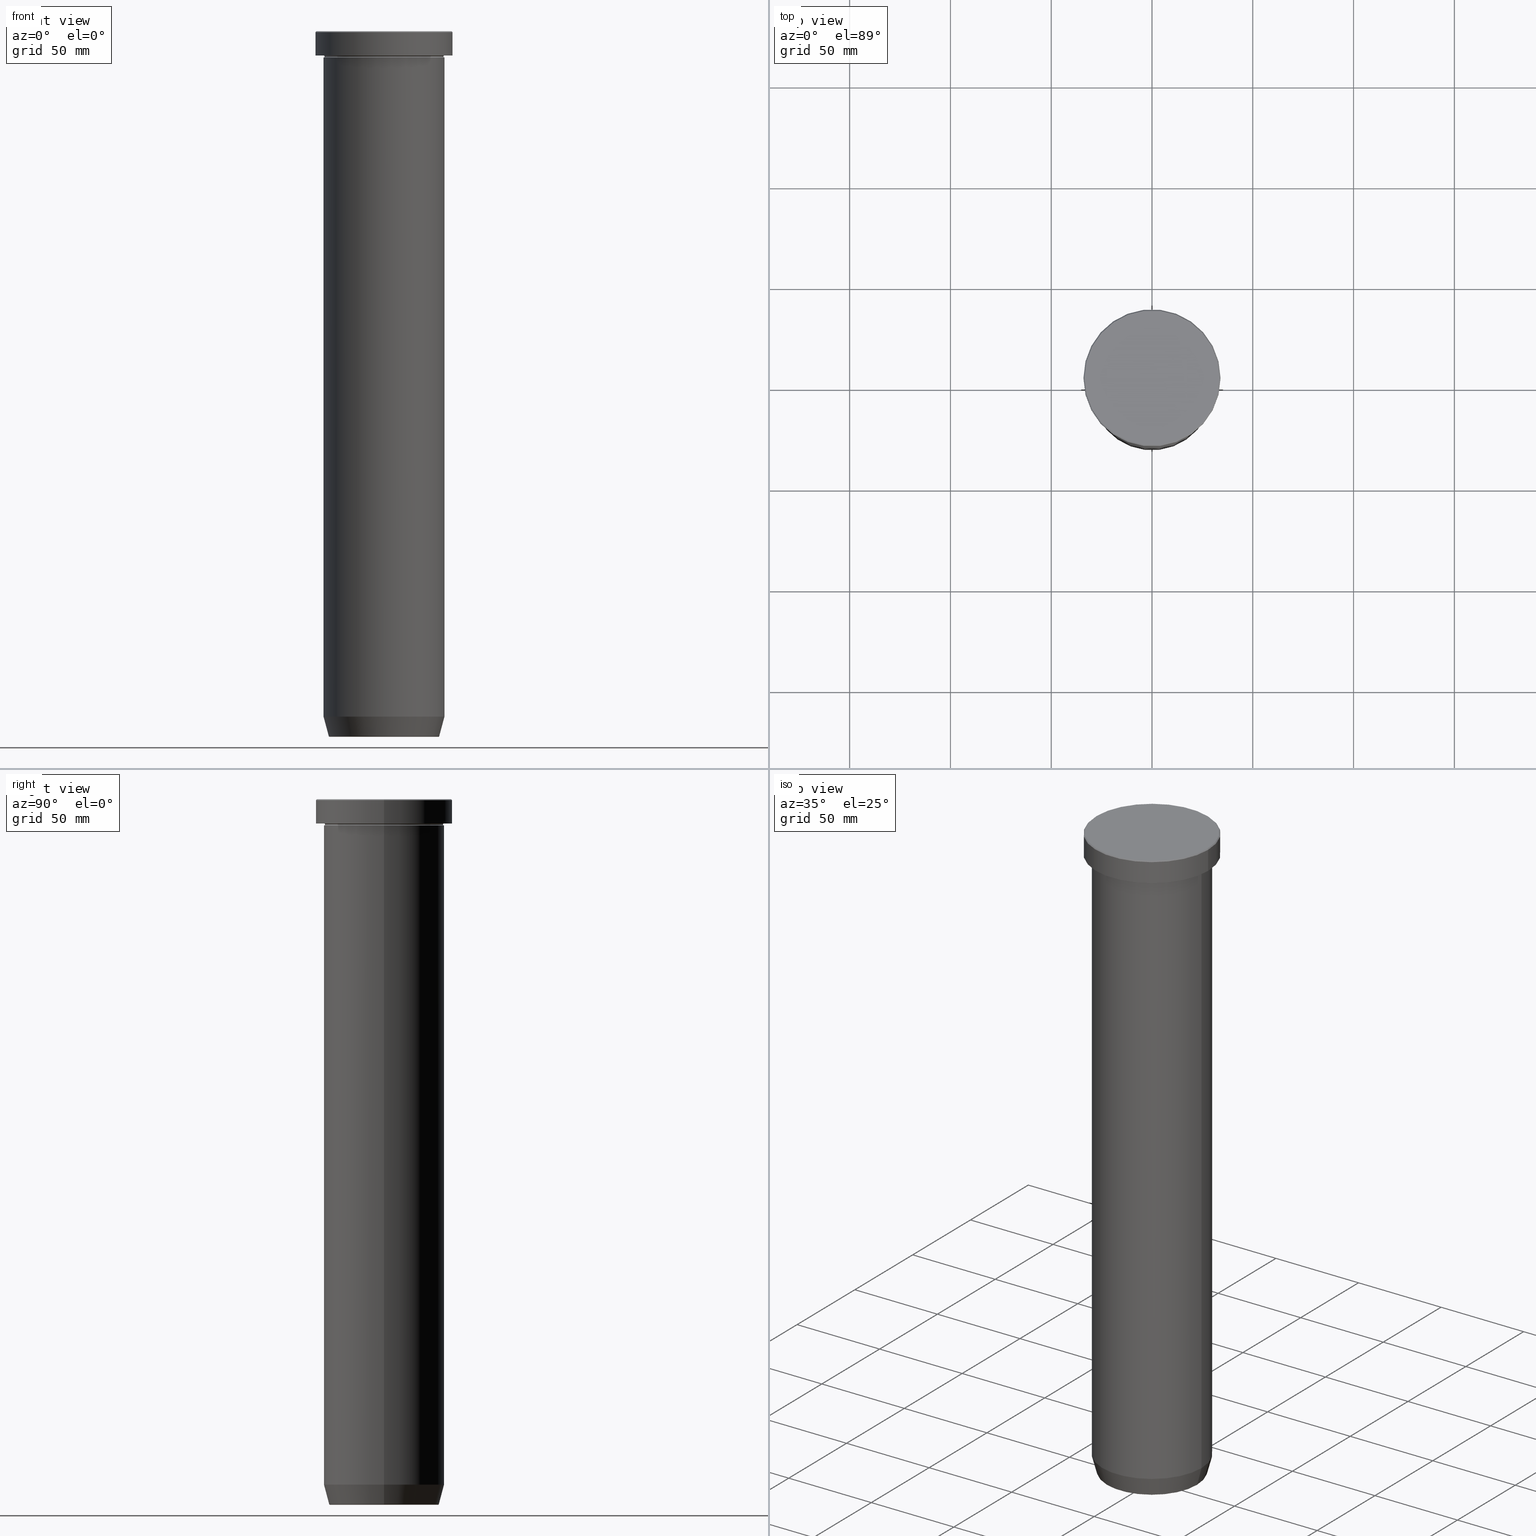
[diagram: canonical four-view strip — front | top / right | iso, engineering-drawing reading convention]
A machine part, canonical four-view strip (front | top / right | iso — engineering-drawing reading convention). The complete STEP part file that produces these views, byte-faithful:
ISO-10303-21;
HEADER;
FILE_DESCRIPTION (( 'STEP AP203' ),
    '1' );
FILE_NAME ('90fc.STEP',
    '2024-01-02T17:30:30',
    ( '' ),
    ( '' ),
    'SwSTEP 2.0',
    'SolidWorks 2019',
    '' );
FILE_SCHEMA (( 'CONFIG_CONTROL_DESIGN' ));
ENDSEC;

DATA;
#1 = PERSON ( 'NEUR�EN�', 'NEUR�EN�', 'NEUR�EN�', ('NEUR�EN�'), ('NEUR�EN�'), ('NEUR�EN�') ) ;
#2 = DIRECTION ( 'NONE',  ( 1.000000000000000000, 0.000000000000000000, 0.000000000000000000 ) ) ;
#3 = EDGE_CURVE ( 'NONE', #505, #324, #384, .T. ) ;
#4 = DIRECTION ( 'NONE',  ( 0.000000000000000000, 0.000000000000000000, -1.000000000000000000 ) ) ;
#5 = DIRECTION ( 'NONE',  ( 0.000000000000000000, 0.000000000000000000, -1.000000000000000000 ) ) ;
#6 = DIRECTION ( 'NONE',  ( 0.000000000000000000, 0.000000000000000000, -1.000000000000000000 ) ) ;
#7 = AXIS2_PLACEMENT_3D ( 'NONE', #491, #167, #525 ) ;
#8 = CIRCLE ( 'NONE', #291, 0.5000000000000004441 ) ;
#9 = VERTEX_POINT ( 'NONE', #41 ) ;
#10 = DIRECTION ( 'NONE',  ( 1.000000000000000000, 0.000000000000000000, 0.000000000000000000 ) ) ;
#11 = DIRECTION ( 'NONE',  ( -1.000000000000000000, 0.000000000000000000, -0.000000000000000000 ) ) ;
#12 = EDGE_CURVE ( 'NONE', #168, #570, #60, .T. ) ;
#13 = AXIS2_PLACEMENT_3D ( 'NONE', #253, #344, #349 ) ;
#14 = ORIENTED_EDGE ( 'NONE', *, *, #47, .F. ) ;
#15 = AXIS2_PLACEMENT_3D ( 'NONE', #457, #234, #412 ) ;
#16 = SECURITY_CLASSIFICATION ( '', '', #482 ) ;
#17 = ORIENTED_EDGE ( 'NONE', *, *, #214, .T. ) ;
#18 = ORIENTED_EDGE ( 'NONE', *, *, #409, .F. ) ;
#19 = EDGE_CURVE ( 'NONE', #161, #410, #588, .T. ) ;
#20 = ORIENTED_EDGE ( 'NONE', *, *, #543, .T. ) ;
#21 = DIRECTION ( 'NONE',  ( 1.000000000000000000, 0.000000000000000000, 0.000000000000000000 ) ) ;
#22 = CARTESIAN_POINT ( 'NONE',  ( 0.000000000000000000, 0.000000000000000000, -70.00000000000000000 ) ) ;
#23 = EDGE_LOOP ( 'NONE', ( #56, #518, #316, #425 ) ) ;
#24 = CARTESIAN_POINT ( 'NONE',  ( -30.00000000000000711, 3.673940397442059967E-15, -70.00000000000000000 ) ) ;
#25 = CIRCLE ( 'NONE', #107, 30.00000000000000000 ) ;
#26 = DIRECTION ( 'NONE',  ( -1.000000000000000000, 0.000000000000000000, -0.000000000000000000 ) ) ;
#27 = APPROVAL_PERSON_ORGANIZATION ( #548, #340, #454 ) ;
#28 = EDGE_LOOP ( 'NONE', ( #331, #113, #152, #17 ) ) ;
#29 = PERSON_AND_ORGANIZATION ( #1, #305 ) ;
#30 = EDGE_CURVE ( 'NONE', #473, #158, #78, .T. ) ;
#31 = CARTESIAN_POINT ( 'NONE',  ( 0.000000000000000000, 0.000000000000000000, -0.4999999999999935052 ) ) ;
#32 = DIRECTION ( 'NONE',  ( 0.000000000000000000, 0.000000000000000000, -1.000000000000000000 ) ) ;
#33 = FACE_OUTER_BOUND ( 'NONE', #574, .T. ) ;
#34 = DIRECTION ( 'NONE',  ( -1.000000000000000000, 0.000000000000000000, 0.000000000000000000 ) ) ;
#35 = CARTESIAN_POINT ( 'NONE',  ( -30.00000000000000000, 0.000000000000000000, -11.99999999999999645 ) ) ;
#36 = AXIS2_PLACEMENT_3D ( 'NONE', #585, #70, #442 ) ;
#37 = CIRCLE ( 'NONE', #199, 30.00000000000000000 ) ;
#38 = DIRECTION ( 'NONE',  ( 1.000000000000000000, 0.000000000000000000, 0.000000000000000000 ) ) ;
#39 = DIRECTION ( 'NONE',  ( -0.000000000000000000, -0.000000000000000000, 1.000000000000000000 ) ) ;
#40 = EDGE_CURVE ( 'NONE', #117, #72, #216, .T. ) ;
#41 = CARTESIAN_POINT ( 'NONE',  ( 34.00000000000000000, 0.000000000000000000, -0.4999999999999935052 ) ) ;
#42 = PERSON_AND_ORGANIZATION_ROLE ( 'creator' ) ;
#43 = LINE ( 'NONE', #315, #521 ) ;
#44 = CARTESIAN_POINT ( 'NONE',  ( 0.000000000000000000, 0.000000000000000000, 0.000000000000000000 ) ) ;
#45 = EDGE_LOOP ( 'NONE', ( #377, #188, #20, #461 ) ) ;
#46 = CIRCLE ( 'NONE', #108, 26.93684458169928320 ) ;
#47 = EDGE_CURVE ( 'NONE', #158, #9, #153, .T. ) ;
#48 = CARTESIAN_POINT ( 'NONE',  ( 30.00000000000000000, 0.000000000000000000, -12.49999999999999645 ) ) ;
#49 = DIRECTION ( 'NONE',  ( 0.000000000000000000, 0.000000000000000000, -1.000000000000000000 ) ) ;
#50 = DIRECTION ( 'NONE',  ( -1.000000000000000000, 0.000000000000000000, 0.000000000000000000 ) ) ;
#51 = DIRECTION ( 'NONE',  ( -0.000000000000000000, -0.000000000000000000, 1.000000000000000000 ) ) ;
#52 = ADVANCED_FACE ( 'NONE', ( #180 ), #546, .T. ) ;
#53 = PLANE ( 'NONE',  #100 ) ;
#54 = AXIS2_PLACEMENT_3D ( 'NONE', #391, #542, #38 ) ;
#55 = ORIENTED_EDGE ( 'NONE', *, *, #204, .F. ) ;
#56 = ORIENTED_EDGE ( 'NONE', *, *, #40, .F. ) ;
#57 = ORIENTED_EDGE ( 'NONE', *, *, #565, .T. ) ;
#58 = DIRECTION ( 'NONE',  ( 1.000000000000000000, 0.000000000000000000, 0.000000000000000000 ) ) ;
#59 = ORIENTED_EDGE ( 'NONE', *, *, #415, .F. ) ;
#60 = CIRCLE ( 'NONE', #274, 30.00000000000000355 ) ;
#61 = EDGE_CURVE ( 'NONE', #410, #161, #25, .T. ) ;
#62 = AXIS2_PLACEMENT_3D ( 'NONE', #44, #406, #273 ) ;
#63 = EDGE_LOOP ( 'NONE', ( #531, #420, #241, #428 ) ) ;
#64 = ORIENTED_EDGE ( 'NONE', *, *, #127, .F. ) ;
#65 = DIRECTION ( 'NONE',  ( 1.000000000000000000, 0.000000000000000000, 0.000000000000000000 ) ) ;
#66 = ADVANCED_FACE ( 'NONE', ( #556 ), #545, .T. ) ;
#67 = ORIENTED_EDGE ( 'NONE', *, *, #214, .F. ) ;
#68 = ORIENTED_EDGE ( 'NONE', *, *, #312, .F. ) ;
#69 = CIRCLE ( 'NONE', #15, 27.41980749484382684 ) ;
#70 = DIRECTION ( 'NONE',  ( -0.000000000000000000, -0.000000000000000000, 1.000000000000000000 ) ) ;
#71 = ORIENTED_EDGE ( 'NONE', *, *, #300, .T. ) ;
#72 = VERTEX_POINT ( 'NONE', #568 ) ;
#73 = DIRECTION ( 'NONE',  ( -0.000000000000000000, -0.000000000000000000, 1.000000000000000000 ) ) ;
#74 = FACE_OUTER_BOUND ( 'NONE', #244, .T. ) ;
#75 = DIRECTION ( 'NONE',  ( -1.000000000000000000, 0.000000000000000000, 0.000000000000000000 ) ) ;
#76 = DIRECTION ( 'NONE',  ( 0.000000000000000000, -1.000000000000000000, 0.000000000000000000 ) ) ;
#77 = CARTESIAN_POINT ( 'NONE',  ( 0.000000000000000000, 0.000000000000000000, 0.000000000000000000 ) ) ;
#78 = LINE ( 'NONE', #178, #119 ) ;
#79 = CARTESIAN_POINT ( 'NONE',  ( 0.000000000000000000, 0.000000000000000000, 0.000000000000000000 ) ) ;
#80 = ADVANCED_FACE ( 'NONE', ( #143 ), #53, .T. ) ;
#81 = DIRECTION ( 'NONE',  ( -0.000000000000000000, -0.000000000000000000, 1.000000000000000000 ) ) ;
#82 = AXIS2_PLACEMENT_3D ( 'NONE', #215, #395, #262 ) ;
#83 = TOROIDAL_SURFACE ( 'NONE', #54, 30.00000000000000000, 0.5000000000000000000 ) ;
#84 = APPLICATION_CONTEXT ( 'configuration controlled 3d designs of mechanical parts and assemblies' ) ;
#85 = DIRECTION ( 'NONE',  ( 1.000000000000000000, 0.000000000000000000, 0.000000000000000000 ) ) ;
#86 = CARTESIAN_POINT ( 'NONE',  ( 0.000000000000000000, 0.000000000000000000, -350.0000000000000568 ) ) ;
#87 = CARTESIAN_POINT ( 'NONE',  ( 0.000000000000000000, 0.000000000000000000, -70.00000000000000000 ) ) ;
#88 = CARTESIAN_POINT ( 'NONE',  ( 0.000000000000000000, 0.000000000000000000, -12.49999999999999645 ) ) ;
#89 = APPROVAL ( #230, 'NEUR�EN�' ) ;
#90 = DIRECTION ( 'NONE',  ( 1.000000000000000000, 0.000000000000000000, 0.000000000000000000 ) ) ;
#91 = CLOSED_SHELL ( 'NONE', ( #523, #224, #390, #150, #573, #52, #80, #594, #292, #134, #584, #193, #66 ) ) ;
#92 = DIRECTION ( 'NONE',  ( -0.000000000000000000, -0.000000000000000000, 1.000000000000000000 ) ) ;
#93 = TOROIDAL_SURFACE ( 'NONE', #238, 30.00000000000000000, 0.5000000000000000000 ) ;
#94 = CARTESIAN_POINT ( 'NONE',  ( 0.000000000000000000, 0.000000000000000000, 0.000000000000000000 ) ) ;
#95 = ORIENTED_EDGE ( 'NONE', *, *, #61, .T. ) ;
#96 = CARTESIAN_POINT ( 'NONE',  ( 0.000000000000000000, 0.000000000000000000, -11.99999999999999645 ) ) ;
#97 = ORIENTED_EDGE ( 'NONE', *, *, #3, .T. ) ;
#98 = DIRECTION ( 'NONE',  ( -0.000000000000000000, -0.000000000000000000, 1.000000000000000000 ) ) ;
#99 = EDGE_CURVE ( 'NONE', #517, #473, #431, .T. ) ;
#100 = AXIS2_PLACEMENT_3D ( 'NONE', #498, #239, #332 ) ;
#101 = AXIS2_PLACEMENT_3D ( 'NONE', #320, #558, #504 ) ;
#102 = COORDINATED_UNIVERSAL_TIME_OFFSET ( 1, 0, .AHEAD. ) ;
#103 = PLANE ( 'NONE',  #589 ) ;
#104 = PRODUCT_DEFINITION_SHAPE ( 'NONE', 'NONE',  #242 ) ;
#105 = EDGE_CURVE ( 'NONE', #334, #480, #508, .T. ) ;
#106 = EDGE_LOOP ( 'NONE', ( #465, #68, #380, #356 ) ) ;
#107 = AXIS2_PLACEMENT_3D ( 'NONE', #96, #571, #559 ) ;
#108 = AXIS2_PLACEMENT_3D ( 'NONE', #86, #191, #231 ) ;
#109 = CC_DESIGN_APPROVAL ( #89, ( #242 ) ) ;
#110 = DIRECTION ( 'NONE',  ( 0.000000000000000000, 0.000000000000000000, -1.000000000000000000 ) ) ;
#111 = ADVANCED_FACE ( 'NONE', ( #476 ), #131, .T. ) ;
#112 = PLANE ( 'NONE',  #414 ) ;
#113 = ORIENTED_EDGE ( 'NONE', *, *, #419, .F. ) ;
#114 = FACE_OUTER_BOUND ( 'NONE', #379, .T. ) ;
#115 = FACE_OUTER_BOUND ( 'NONE', #63, .T. ) ;
#116 = ORIENTED_EDGE ( 'NONE', *, *, #319, .T. ) ;
#117 = VERTEX_POINT ( 'NONE', #364 ) ;
#118 = DIRECTION ( 'NONE',  ( 1.000000000000000000, 0.000000000000000000, 0.000000000000000000 ) ) ;
#119 = VECTOR ( 'NONE', #225, 1000.000000000000000 ) ;
#120 = AXIS2_PLACEMENT_3D ( 'NONE', #416, #524, #575 ) ;
#121 = CARTESIAN_POINT ( 'NONE',  ( 33.50000000000000000, 4.133182947122317561E-15, 0.000000000000000000 ) ) ;
#122 = PRODUCT_DEFINITION_FORMATION_WITH_SPECIFIED_SOURCE ( 'LIBOVOLN�', '', #386, .NOT_KNOWN. ) ;
#123 = CARTESIAN_POINT ( 'NONE',  ( 0.000000000000000000, 0.000000000000000000, -11.99999999999999645 ) ) ;
#124 = DIRECTION ( 'NONE',  ( 1.000000000000000000, 0.000000000000000000, 0.000000000000000000 ) ) ;
#125 = CARTESIAN_POINT ( 'NONE',  ( 0.000000000000000000, 0.000000000000000000, -340.0000000000000000 ) ) ;
#126 = APPROVAL_DATE_TIME ( #404, #340 ) ;
#127 = EDGE_CURVE ( 'NONE', #480, #72, #510, .T. ) ;
#128 = DIRECTION ( 'NONE',  ( 1.000000000000000000, 0.000000000000000000, 0.000000000000000000 ) ) ;
#129 = DIRECTION ( 'NONE',  ( 1.000000000000000000, 0.000000000000000000, 0.000000000000000000 ) ) ;
#130 = DIRECTION ( 'NONE',  ( -0.2588190451025211836, 3.169619151431770488E-17, 0.9659258262890680902 ) ) ;
#131 = TOROIDAL_SURFACE ( 'NONE', #184, 26.93684458169928320, 0.5000000000000000000 ) ;
#132 = LOCAL_TIME ( 18, 30, 30.00000000000000000, #501 ) ;
#133 = DIRECTION ( 'NONE',  ( 0.000000000000000000, 0.000000000000000000, -1.000000000000000000 ) ) ;
#134 = ADVANCED_FACE ( 'NONE', ( #115 ), #383, .T. ) ;
#135 = DIRECTION ( 'NONE',  ( -0.000000000000000000, -0.000000000000000000, 1.000000000000000000 ) ) ;
#136 = COORDINATED_UNIVERSAL_TIME_OFFSET ( 1, 0, .AHEAD. ) ;
#137 = CARTESIAN_POINT ( 'NONE',  ( 0.000000000000000000, 0.000000000000000000, -340.0000000000000000 ) ) ;
#138 = APPROVAL_ROLE ( '' ) ;
#139 = ORIENTED_EDGE ( 'NONE', *, *, #363, .T. ) ;
#140 = LINE ( 'NONE', #544, #398 ) ;
#141 = AXIS2_PLACEMENT_3D ( 'NONE', #360, #407, #591 ) ;
#142 = CIRCLE ( 'NONE', #597, 0.5000000000000004441 ) ;
#143 = FACE_OUTER_BOUND ( 'NONE', #388, .T. ) ;
#144 = AXIS2_PLACEMENT_3D ( 'NONE', #434, #343, #124 ) ;
#145 = VERTEX_POINT ( 'NONE', #394 ) ;
#146 = ORIENTED_EDGE ( 'NONE', *, *, #427, .F. ) ;
#147 = PERSON_AND_ORGANIZATION ( #1, #305 ) ;
#148 = CARTESIAN_POINT ( 'NONE',  ( 29.50000000000000000, 0.000000000000000000, -12.49999999999999645 ) ) ;
#149 = CARTESIAN_POINT ( 'NONE',  ( 0.000000000000000000, 0.000000000000000000, 0.000000000000000000 ) ) ;
#150 = ADVANCED_FACE ( 'NONE', ( #33 ), #430, .T. ) ;
#151 = CARTESIAN_POINT ( 'NONE',  ( 34.00000000000000000, 0.000000000000000000, 0.000000000000000000 ) ) ;
#152 = ORIENTED_EDGE ( 'NONE', *, *, #401, .T. ) ;
#153 = CIRCLE ( 'NONE', #408, 34.00000000000000000 ) ;
#154 = EDGE_LOOP ( 'NONE', ( #194, #18 ) ) ;
#155 = CIRCLE ( 'NONE', #577, 30.00000000000000000 ) ;
#156 = DATE_TIME_ROLE ( 'creation_date' ) ;
#157 = CC_DESIGN_DATE_AND_TIME_ASSIGNMENT ( #357, #156, ( #242 ) ) ;
#158 = VERTEX_POINT ( 'NONE', #486 ) ;
#159 = CARTESIAN_POINT ( 'NONE',  ( 0.000000000000000000, 3.673940397442060124E-14, -350.0000000000000568 ) ) ;
#160 = ORIENTED_EDGE ( 'NONE', *, *, #462, .T. ) ;
#161 = VERTEX_POINT ( 'NONE', #35 ) ;
#162 = VERTEX_POINT ( 'NONE', #121 ) ;
#163 = AXIS2_PLACEMENT_3D ( 'NONE', #22, #81, #173 ) ;
#164 = EDGE_CURVE ( 'NONE', #258, #158, #578, .T. ) ;
#165 = AXIS2_PLACEMENT_3D ( 'NONE', #79, #277, #90 ) ;
#166 = CARTESIAN_POINT ( 'NONE',  ( 26.93684458169928320, 0.000000000000000000, -349.5000000000000568 ) ) ;
#167 = DIRECTION ( 'NONE',  ( -0.000000000000000000, -0.000000000000000000, 1.000000000000000000 ) ) ;
#168 = VERTEX_POINT ( 'NONE', #170 ) ;
#169 = DIRECTION ( 'NONE',  ( -0.000000000000000000, -0.000000000000000000, 1.000000000000000000 ) ) ;
#170 = CARTESIAN_POINT ( 'NONE',  ( 30.00000000000000355, 0.000000000000000000, -70.00000000000000000 ) ) ;
#171 = CARTESIAN_POINT ( 'NONE',  ( -26.93684458169928320, 3.298812049610775320E-15, -349.5000000000000568 ) ) ;
#172 = TOROIDAL_SURFACE ( 'NONE', #13, 30.00000000000000000, 0.5000000000000000000 ) ;
#173 = DIRECTION ( 'NONE',  ( 1.000000000000000000, 0.000000000000000000, 0.000000000000000000 ) ) ;
#174 = EDGE_CURVE ( 'NONE', #117, #334, #254, .T. ) ;
#175 = CARTESIAN_POINT ( 'NONE',  ( -30.00000000000000000, 3.673940397442059178E-15, 0.000000000000000000 ) ) ;
#176 = DIRECTION ( 'NONE',  ( -1.224646799147353207E-16, 1.000000000000000000, 0.000000000000000000 ) ) ;
#177 = DESIGN_CONTEXT ( 'detailed design', #84, 'design' ) ;
#178 = CARTESIAN_POINT ( 'NONE',  ( -34.00000000000000000, 4.163799117101000559E-15, 0.000000000000000000 ) ) ;
#179 = FACE_OUTER_BOUND ( 'NONE', #370, .T. ) ;
#180 = FACE_OUTER_BOUND ( 'NONE', #237, .T. ) ;
#181 = CC_DESIGN_PERSON_AND_ORGANIZATION_ASSIGNMENT ( #468, #389, ( #122 ) ) ;
#182 = CALENDAR_DATE ( 2024, 2, 1 ) ;
#183 = EDGE_CURVE ( 'NONE', #477, #145, #422, .T. ) ;
#184 = AXIS2_PLACEMENT_3D ( 'NONE', #323, #92, #65 ) ;
#185 = VECTOR ( 'NONE', #403, 1000.000000000000114 ) ;
#186 = CC_DESIGN_SECURITY_CLASSIFICATION ( #16, ( #122 ) ) ;
#187 = DATE_AND_TIME ( #449, #132 ) ;
#188 = ORIENTED_EDGE ( 'NONE', *, *, #466, .T. ) ;
#189 = FACE_OUTER_BOUND ( 'NONE', #198, .T. ) ;
#190 = PLANE ( 'NONE',  #330 ) ;
#191 = DIRECTION ( 'NONE',  ( 0.000000000000000000, 0.000000000000000000, -1.000000000000000000 ) ) ;
#192 = AXIS2_PLACEMENT_3D ( 'NONE', #171, #533, #307 ) ;
#193 = ADVANCED_FACE ( 'NONE', ( #74 ), #172, .F. ) ;
#194 = ORIENTED_EDGE ( 'NONE', *, *, #99, .F. ) ;
#195 = ORIENTED_EDGE ( 'NONE', *, *, #164, .T. ) ;
#196 = PRODUCT_RELATED_PRODUCT_CATEGORY ( 'detail', '', ( #386 ) ) ;
#197 = EDGE_CURVE ( 'NONE', #324, #410, #500, .T. ) ;
#198 = EDGE_LOOP ( 'NONE', ( #373, #284, #64, #257 ) ) ;
#199 = AXIS2_PLACEMENT_3D ( 'NONE', #590, #207, #485 ) ;
#200 = ORIENTED_EDGE ( 'NONE', *, *, #409, .T. ) ;
#201 = EDGE_LOOP ( 'NONE', ( #550, #95 ) ) ;
#202 = VERTEX_POINT ( 'NONE', #490 ) ;
#203 = CC_DESIGN_DATE_AND_TIME_ASSIGNMENT ( #598, #268, ( #16 ) ) ;
#204 = EDGE_CURVE ( 'NONE', #162, #258, #520, .T. ) ;
#205 = AXIS2_PLACEMENT_3D ( 'NONE', #123, #487, #75 ) ;
#206 = VECTOR ( 'NONE', #374, 1000.000000000000000 ) ;
#207 = DIRECTION ( 'NONE',  ( -0.000000000000000000, -0.000000000000000000, 1.000000000000000000 ) ) ;
#208 = CARTESIAN_POINT ( 'NONE',  ( 0.000000000000000000, 0.000000000000000000, -70.00000000000000000 ) ) ;
#209 = EDGE_LOOP ( 'NONE', ( #267, #474, #371, #381 ) ) ;
#210 = PERSON_AND_ORGANIZATION_ROLE ( 'classification_officer' ) ;
#211 = DIRECTION ( 'NONE',  ( 1.000000000000000000, 0.000000000000000000, 0.000000000000000000 ) ) ;
#212 = CARTESIAN_POINT ( 'NONE',  ( 0.000000000000000000, 0.000000000000000000, 0.000000000000000000 ) ) ;
#213 = ORIENTED_EDGE ( 'NONE', *, *, #251, .F. ) ;
#214 = EDGE_CURVE ( 'NONE', #339, #202, #263, .T. ) ;
#215 = CARTESIAN_POINT ( 'NONE',  ( 0.000000000000000000, 0.000000000000000000, -12.49999999999999645 ) ) ;
#216 = LINE ( 'NONE', #444, #355 ) ;
#217 = AXIS2_PLACEMENT_3D ( 'NONE', #460, #6, #11 ) ;
#218 = FACE_OUTER_BOUND ( 'NONE', #436, .T. ) ;
#219 = CIRCLE ( 'NONE', #62, 33.50000000000000000 ) ;
#220 = DIRECTION ( 'NONE',  ( -0.7071067811865524577, 0.000000000000000000, -0.7071067811865426878 ) ) ;
#221 = CARTESIAN_POINT ( 'NONE',  ( 0.000000000000000000, 0.000000000000000000, -0.4999999999999935052 ) ) ;
#222 = CYLINDRICAL_SURFACE ( 'NONE', #165, 34.00000000000000000 ) ;
#223 = CARTESIAN_POINT ( 'NONE',  ( 0.000000000000000000, 0.000000000000000000, -350.0000000000000568 ) ) ;
#224 = ADVANCED_FACE ( 'NONE', ( #260 ), #245, .F. ) ;
#225 = DIRECTION ( 'NONE',  ( -0.000000000000000000, -0.000000000000000000, 1.000000000000000000 ) ) ;
#226 = ORIENTED_EDGE ( 'NONE', *, *, #61, .F. ) ;
#227 = COORDINATED_UNIVERSAL_TIME_OFFSET ( 1, 0, .AHEAD. ) ;
#228 = FACE_BOUND ( 'NONE', #201, .T. ) ;
#229 = ORIENTED_EDGE ( 'NONE', *, *, #204, .T. ) ;
#230 = APPROVAL_STATUS ( 'not_yet_approved' ) ;
#231 = DIRECTION ( 'NONE',  ( 1.000000000000000000, 0.000000000000000000, 0.000000000000000000 ) ) ;
#232 = VECTOR ( 'NONE', #519, 1000.000000000000000 ) ;
#233 = DIRECTION ( 'NONE',  ( 1.000000000000000000, 0.000000000000000000, 0.000000000000000000 ) ) ;
#234 = DIRECTION ( 'NONE',  ( -0.000000000000000000, -0.000000000000000000, 1.000000000000000000 ) ) ;
#235 = ADVANCED_FACE ( 'NONE', ( #337 ), #112, .F. ) ;
#236 = ORIENTED_EDGE ( 'NONE', *, *, #30, .F. ) ;
#237 = EDGE_LOOP ( 'NONE', ( #514, #213 ) ) ;
#238 = AXIS2_PLACEMENT_3D ( 'NONE', #448, #39, #411 ) ;
#239 = DIRECTION ( 'NONE',  ( 0.000000000000000000, -0.000000000000000000, 1.000000000000000000 ) ) ;
#240 = ORIENTED_EDGE ( 'NONE', *, *, #378, .T. ) ;
#241 = ORIENTED_EDGE ( 'NONE', *, *, #427, .T. ) ;
#242 = PRODUCT_DEFINITION ( 'NEZN�M�', '', #122, #177 ) ;
#243 = CARTESIAN_POINT ( 'NONE',  ( 30.00000000000000000, 0.000000000000000000, 0.000000000000000000 ) ) ;
#244 = EDGE_LOOP ( 'NONE', ( #281, #526, #569, #226 ) ) ;
#245 = TOROIDAL_SURFACE ( 'NONE', #82, 30.00000000000000000, 0.5000000000000000000 ) ;
#246 = AXIS2_PLACEMENT_3D ( 'NONE', #48, #554, #133 ) ;
#247 = ORIENTED_EDGE ( 'NONE', *, *, #555, .F. ) ;
#248 = CC_DESIGN_APPROVAL ( #340, ( #16 ) ) ;
#249 = LINE ( 'NONE', #243, #206 ) ;
#250 = DIRECTION ( 'NONE',  ( 1.000000000000000000, 0.000000000000000000, 0.000000000000000000 ) ) ;
#251 = EDGE_CURVE ( 'NONE', #570, #168, #566, .T. ) ;
#252 = FACE_OUTER_BOUND ( 'NONE', #372, .T. ) ;
#253 = CARTESIAN_POINT ( 'NONE',  ( 0.000000000000000000, 0.000000000000000000, -12.49999999999999645 ) ) ;
#254 = CIRCLE ( 'NONE', #443, 30.00000000000000000 ) ;
#255 = AXIS2_PLACEMENT_3D ( 'NONE', #493, #362, #2 ) ;
#256 = DIRECTION ( 'NONE',  ( 0.000000000000000000, 0.000000000000000000, -1.000000000000000000 ) ) ;
#257 = ORIENTED_EDGE ( 'NONE', *, *, #105, .F. ) ;
#258 = VERTEX_POINT ( 'NONE', #299 ) ;
#259 = CC_DESIGN_PERSON_AND_ORGANIZATION_ASSIGNMENT ( #552, #42, ( #242 ) ) ;
#260 = FACE_OUTER_BOUND ( 'NONE', #516, .T. ) ;
#261 = CARTESIAN_POINT ( 'NONE',  ( 0.000000000000000000, 0.000000000000000000, -349.6294095225512706 ) ) ;
#262 = DIRECTION ( 'NONE',  ( -1.000000000000000000, 0.000000000000000000, 0.000000000000000000 ) ) ;
#263 = CIRCLE ( 'NONE', #7, 30.00000000000000000 ) ;
#264 = AXIS2_PLACEMENT_3D ( 'NONE', #261, #73, #34 ) ;
#265 =( GEOMETRIC_REPRESENTATION_CONTEXT ( 3 ) GLOBAL_UNCERTAINTY_ASSIGNED_CONTEXT ( ( #509 ) ) GLOBAL_UNIT_ASSIGNED_CONTEXT ( ( #272, #314, #458 ) ) REPRESENTATION_CONTEXT ( 'NONE', 'WORKASPACE' ) );
#266 = DIRECTION ( 'NONE',  ( -0.000000000000000000, -0.000000000000000000, 1.000000000000000000 ) ) ;
#267 = ORIENTED_EDGE ( 'NONE', *, *, #99, .T. ) ;
#268 = DATE_TIME_ROLE ( 'classification_date' ) ;
#269 = DIRECTION ( 'NONE',  ( 1.000000000000000000, 0.000000000000000000, 0.000000000000000000 ) ) ;
#270 = ORIENTED_EDGE ( 'NONE', *, *, #352, .F. ) ;
#271 = DIRECTION ( 'NONE',  ( -0.000000000000000000, -0.000000000000000000, 1.000000000000000000 ) ) ;
#272 =( LENGTH_UNIT ( ) NAMED_UNIT ( * ) SI_UNIT ( .MILLI., .METRE. ) );
#273 = DIRECTION ( 'NONE',  ( 1.000000000000000000, 0.000000000000000000, 0.000000000000000000 ) ) ;
#274 = AXIS2_PLACEMENT_3D ( 'NONE', #87, #135, #345 ) ;
#275 = AXIS2_PLACEMENT_3D ( 'NONE', #429, #32, #438 ) ;
#276 = AXIS2_PLACEMENT_3D ( 'NONE', #310, #492, #85 ) ;
#277 = DIRECTION ( 'NONE',  ( -0.000000000000000000, -0.000000000000000000, 1.000000000000000000 ) ) ;
#278 = EDGE_CURVE ( 'NONE', #477, #563, #368, .T. ) ;
#279 = MANIFOLD_SOLID_BREP ( 'Zaoblit4', #375 ) ;
#280 = CARTESIAN_POINT ( 'NONE',  ( 0.000000000000000000, 34.00000000000000000, -11.99999999999999645 ) ) ;
#281 = ORIENTED_EDGE ( 'NONE', *, *, #197, .F. ) ;
#282 = APPROVAL_STATUS ( 'not_yet_approved' ) ;
#283 = CARTESIAN_POINT ( 'NONE',  ( 0.000000000000000000, 0.000000000000000000, -70.00000000000000000 ) ) ;
#284 = ORIENTED_EDGE ( 'NONE', *, *, #40, .T. ) ;
#285 = ADVANCED_FACE ( 'NONE', ( #189 ), #359, .T. ) ;
#286 = AXIS2_PLACEMENT_3D ( 'NONE', #31, #256, #211 ) ;
#287 = APPROVAL_PERSON_ORGANIZATION ( #147, #418, #515 ) ;
#288 = DATE_AND_TIME ( #413, #484 ) ;
#289 = DIRECTION ( 'NONE',  ( 0.000000000000000000, -0.000000000000000000, 1.000000000000000000 ) ) ;
#290 = VECTOR ( 'NONE', #220, 1000.000000000000000 ) ;
#291 = AXIS2_PLACEMENT_3D ( 'NONE', #166, #76, #110 ) ;
#292 = ADVANCED_FACE ( 'NONE', ( #228, #450 ), #190, .T. ) ;
#293 = FACE_OUTER_BOUND ( 'NONE', #209, .T. ) ;
#294 = DIRECTION ( 'NONE',  ( -0.000000000000000000, -0.000000000000000000, 1.000000000000000000 ) ) ;
#295 = FACE_OUTER_BOUND ( 'NONE', #28, .T. ) ;
#296 = CARTESIAN_POINT ( 'NONE',  ( 0.000000000000000000, 3.469446951953614189E-15, -70.00000000000000000 ) ) ;
#297 = ORIENTED_EDGE ( 'NONE', *, *, #278, .T. ) ;
#298 = DIRECTION ( 'NONE',  ( 0.000000000000000000, 0.000000000000000000, -1.000000000000000000 ) ) ;
#299 = CARTESIAN_POINT ( 'NONE',  ( -33.50000000000000000, 0.000000000000000000, 0.000000000000000000 ) ) ;
#300 = EDGE_CURVE ( 'NONE', #503, #334, #459, .T. ) ;
#301 = ORIENTED_EDGE ( 'NONE', *, *, #513, .F. ) ;
#302 = AXIS2_PLACEMENT_3D ( 'NONE', #208, #392, #529 ) ;
#303 = CIRCLE ( 'NONE', #464, 29.50000000000000000 ) ;
#304 = CARTESIAN_POINT ( 'NONE',  ( -30.00000000000000000, 0.000000000000000000, -12.49999999999999645 ) ) ;
#305 = ORGANIZATION ( 'NEUR�EN�', 'NEUR�EN�', '' ) ;
#306 = CARTESIAN_POINT ( 'NONE',  ( 0.000000000000000000, 0.000000000000000000, -350.0000000000000568 ) ) ;
#307 = DIRECTION ( 'NONE',  ( -1.000000000000000000, 1.224646799147349509E-16, 0.000000000000000000 ) ) ;
#308 = SHAPE_DEFINITION_REPRESENTATION ( #104, #562 ) ;
#309 = AXIS2_PLACEMENT_3D ( 'NONE', #400, #176, #587 ) ;
#310 = CARTESIAN_POINT ( 'NONE',  ( 0.000000000000000000, 0.000000000000000000, 0.000000000000000000 ) ) ;
#311 = AXIS2_PLACEMENT_3D ( 'NONE', #94, #495, #325 ) ;
#312 = EDGE_CURVE ( 'NONE', #563, #477, #46, .T. ) ;
#313 = CARTESIAN_POINT ( 'NONE',  ( 27.32050807568876394, 0.000000000000000000, -350.0000000000000568 ) ) ;
#314 =( NAMED_UNIT ( * ) PLANE_ANGLE_UNIT ( ) SI_UNIT ( $, .RADIAN. ) );
#315 = CARTESIAN_POINT ( 'NONE',  ( 33.50000000000000000, 4.102566777143633774E-15, 0.000000000000000000 ) ) ;
#316 = ORIENTED_EDGE ( 'NONE', *, *, #105, .T. ) ;
#317 = FACE_OUTER_BOUND ( 'NONE', #45, .T. ) ;
#318 = CC_DESIGN_PERSON_AND_ORGANIZATION_ASSIGNMENT ( #580, #527, ( #122 ) ) ;
#319 = EDGE_CURVE ( 'NONE', #162, #9, #43, .T. ) ;
#320 = CARTESIAN_POINT ( 'NONE',  ( 0.000000000000000000, 0.000000000000000000, -350.0000000000000568 ) ) ;
#321 = AXIS2_PLACEMENT_3D ( 'NONE', #212, #581, #439 ) ;
#322 = CONICAL_SURFACE ( 'NONE', #432, 27.32050807568876394, 0.2617993877991499074 ) ;
#323 = CARTESIAN_POINT ( 'NONE',  ( 0.000000000000000000, 0.000000000000000000, -349.5000000000000568 ) ) ;
#324 = VERTEX_POINT ( 'NONE', #148 ) ;
#325 = DIRECTION ( 'NONE',  ( 1.000000000000000000, 0.000000000000000000, 0.000000000000000000 ) ) ;
#326 = DIRECTION ( 'NONE',  ( -0.000000000000000000, -0.000000000000000000, 1.000000000000000000 ) ) ;
#327 = ADVANCED_FACE ( 'NONE', ( #592 ), #553, .T. ) ;
#328 = ORIENTED_EDGE ( 'NONE', *, *, #300, .F. ) ;
#329 = AXIS2_PLACEMENT_3D ( 'NONE', #77, #351, #128 ) ;
#330 = AXIS2_PLACEMENT_3D ( 'NONE', #280, #5, #551 ) ;
#331 = ORIENTED_EDGE ( 'NONE', *, *, #466, .F. ) ;
#332 = DIRECTION ( 'NONE',  ( 1.000000000000000000, 0.000000000000000000, 0.000000000000000000 ) ) ;
#333 = ADVANCED_FACE ( 'NONE', ( #179 ), #358, .T. ) ;
#334 = VERTEX_POINT ( 'NONE', #497 ) ;
#335 = VECTOR ( 'NONE', #294, 1000.000000000000000 ) ;
#336 = AXIS2_PLACEMENT_3D ( 'NONE', #478, #382, #21 ) ;
#337 = FACE_OUTER_BOUND ( 'NONE', #393, .T. ) ;
#338 = ORIENTED_EDGE ( 'NONE', *, *, #555, .T. ) ;
#339 = VERTEX_POINT ( 'NONE', #354 ) ;
#340 = APPROVAL ( #593, 'NEUR�EN�' ) ;
#341 = CC_DESIGN_PERSON_AND_ORGANIZATION_ASSIGNMENT ( #405, #353, ( #386 ) ) ;
#342 = DIRECTION ( 'NONE',  ( -0.000000000000000000, -0.000000000000000000, 1.000000000000000000 ) ) ;
#343 = DIRECTION ( 'NONE',  ( -0.000000000000000000, -0.000000000000000000, 1.000000000000000000 ) ) ;
#344 = DIRECTION ( 'NONE',  ( 0.000000000000000000, 0.000000000000000000, -1.000000000000000000 ) ) ;
#345 = DIRECTION ( 'NONE',  ( 1.000000000000000000, 0.000000000000000000, 0.000000000000000000 ) ) ;
#346 = AXIS2_PLACEMENT_3D ( 'NONE', #149, #4, #50 ) ;
#347 = AXIS2_PLACEMENT_3D ( 'NONE', #223, #49, #269 ) ;
#348 = CARTESIAN_POINT ( 'NONE',  ( 27.41980749484383040, 0.000000000000000000, -349.6294095225512706 ) ) ;
#349 = DIRECTION ( 'NONE',  ( -1.000000000000000000, 0.000000000000000000, 0.000000000000000000 ) ) ;
#350 = APPLICATION_PROTOCOL_DEFINITION ( 'international standard', 'config_control_design', 1994, #84 ) ;
#351 = DIRECTION ( 'NONE',  ( -0.000000000000000000, -0.000000000000000000, 1.000000000000000000 ) ) ;
#352 = EDGE_CURVE ( 'NONE', #334, #117, #155, .T. ) ;
#353 = PERSON_AND_ORGANIZATION_ROLE ( 'design_owner' ) ;
#354 = CARTESIAN_POINT ( 'NONE',  ( 30.00000000000000000, 0.000000000000000000, -12.99999999999999822 ) ) ;
#355 = VECTOR ( 'NONE', #396, 1000.000000000000000 ) ;
#356 = ORIENTED_EDGE ( 'NONE', *, *, #363, .F. ) ;
#357 = DATE_AND_TIME ( #182, #447 ) ;
#358 = CONICAL_SURFACE ( 'NONE', #101, 27.32050807568876394, 0.2617993877991499074 ) ;
#359 = CYLINDRICAL_SURFACE ( 'NONE', #255, 30.00000000000000000 ) ;
#360 = CARTESIAN_POINT ( 'NONE',  ( 0.000000000000000000, 0.000000000000000000, -12.49999999999999645 ) ) ;
#361 = APPROVAL_DATE_TIME ( #187, #89 ) ;
#362 = DIRECTION ( 'NONE',  ( -0.000000000000000000, -0.000000000000000000, 1.000000000000000000 ) ) ;
#363 = EDGE_CURVE ( 'NONE', #145, #503, #69, .T. ) ;
#364 = CARTESIAN_POINT ( 'NONE',  ( -30.00000000000000000, 3.673940397442059178E-15, -340.0000000000000000 ) ) ;
#365 = PERSON_AND_ORGANIZATION ( #1, #305 ) ;
#366 = CARTESIAN_POINT ( 'NONE',  ( 30.00000000000000000, 3.673940397442059178E-15, -11.99999999999999645 ) ) ;
#367 = DIRECTION ( 'NONE',  ( 0.7071067811865524577, 8.659560562354994488E-17, -0.7071067811865426878 ) ) ;
#368 = CIRCLE ( 'NONE', #347, 26.93684458169928320 ) ;
#369 = ORIENTED_EDGE ( 'NONE', *, *, #488, .T. ) ;
#370 = EDGE_LOOP ( 'NONE', ( #338, #385, #270, #328 ) ) ;
#371 = ORIENTED_EDGE ( 'NONE', *, *, #47, .T. ) ;
#372 = EDGE_LOOP ( 'NONE', ( #236, #200, #160, #369 ) ) ;
#373 = ORIENTED_EDGE ( 'NONE', *, *, #352, .T. ) ;
#374 = DIRECTION ( 'NONE',  ( -0.000000000000000000, -0.000000000000000000, 1.000000000000000000 ) ) ;
#375 = CLOSED_SHELL ( 'NONE', ( #111, #333, #285, #235, #327, #506, #441, #494 ) ) ;
#376 = CIRCLE ( 'NONE', #445, 34.00000000000000000 ) ;
#377 = ORIENTED_EDGE ( 'NONE', *, *, #3, .F. ) ;
#378 = EDGE_CURVE ( 'NONE', #258, #162, #219, .T. ) ;
#379 = EDGE_LOOP ( 'NONE', ( #59, #139, #71, #433 ) ) ;
#380 = ORIENTED_EDGE ( 'NONE', *, *, #534, .T. ) ;
#381 = ORIENTED_EDGE ( 'NONE', *, *, #462, .F. ) ;
#382 = DIRECTION ( 'NONE',  ( -0.000000000000000000, -0.000000000000000000, 1.000000000000000000 ) ) ;
#383 = CYLINDRICAL_SURFACE ( 'NONE', #321, 30.00000000000000000 ) ;
#384 = CIRCLE ( 'NONE', #141, 29.50000000000000000 ) ;
#385 = ORIENTED_EDGE ( 'NONE', *, *, #415, .T. ) ;
#386 = PRODUCT ( '90fc', '90fc', '', ( #455 ) ) ;
#387 = APPROVAL_PERSON_ORGANIZATION ( #365, #89, #138 ) ;
#388 = EDGE_LOOP ( 'NONE', ( #240, #229 ) ) ;
#389 = PERSON_AND_ORGANIZATION_ROLE ( 'creator' ) ;
#390 = ADVANCED_FACE ( 'NONE', ( #317 ), #93, .F. ) ;
#391 = CARTESIAN_POINT ( 'NONE',  ( 0.000000000000000000, 0.000000000000000000, -12.49999999999999645 ) ) ;
#392 = DIRECTION ( 'NONE',  ( -0.000000000000000000, -0.000000000000000000, 1.000000000000000000 ) ) ;
#393 = EDGE_LOOP ( 'NONE', ( #469, #470 ) ) ;
#394 = CARTESIAN_POINT ( 'NONE',  ( -27.41980749484383040, 3.515949172810884975E-15, -349.6294095225512706 ) ) ;
#395 = DIRECTION ( 'NONE',  ( 0.000000000000000000, 0.000000000000000000, -1.000000000000000000 ) ) ;
#396 = DIRECTION ( 'NONE',  ( -0.000000000000000000, -0.000000000000000000, 1.000000000000000000 ) ) ;
#397 = CIRCLE ( 'NONE', #120, 0.5000000000000004441 ) ;
#398 = VECTOR ( 'NONE', #130, 1000.000000000000114 ) ;
#399 = LINE ( 'NONE', #175, #232 ) ;
#400 = CARTESIAN_POINT ( 'NONE',  ( 30.00000000000000000, 3.673940397442059178E-15, -12.49999999999999645 ) ) ;
#401 = EDGE_CURVE ( 'NONE', #324, #339, #423, .T. ) ;
#402 = CALENDAR_DATE ( 2024, 2, 1 ) ;
#403 = DIRECTION ( 'NONE',  ( 0.2588190451025211836, 0.000000000000000000, 0.9659258262890680902 ) ) ;
#404 = DATE_AND_TIME ( #402, #549 ) ;
#405 = PERSON_AND_ORGANIZATION ( #1, #305 ) ;
#406 = DIRECTION ( 'NONE',  ( -0.000000000000000000, -0.000000000000000000, 1.000000000000000000 ) ) ;
#407 = DIRECTION ( 'NONE',  ( -0.000000000000000000, -0.000000000000000000, 1.000000000000000000 ) ) ;
#408 = AXIS2_PLACEMENT_3D ( 'NONE', #221, #541, #129 ) ;
#409 = EDGE_CURVE ( 'NONE', #473, #517, #376, .T. ) ;
#410 = VERTEX_POINT ( 'NONE', #366 ) ;
#411 = DIRECTION ( 'NONE',  ( 1.000000000000000000, 0.000000000000000000, 0.000000000000000000 ) ) ;
#412 = DIRECTION ( 'NONE',  ( -1.000000000000000000, 0.000000000000000000, 0.000000000000000000 ) ) ;
#413 = CALENDAR_DATE ( 2024, 2, 1 ) ;
#414 = AXIS2_PLACEMENT_3D ( 'NONE', #296, #479, #26 ) ;
#415 = EDGE_CURVE ( 'NONE', #145, #117, #140, .T. ) ;
#416 = CARTESIAN_POINT ( 'NONE',  ( -30.00000000000000000, 3.673940397442059178E-15, -12.49999999999999645 ) ) ;
#417 = ORIENTED_EDGE ( 'NONE', *, *, #534, .F. ) ;
#418 = APPROVAL ( #282, 'NEUR�EN�' ) ;
#419 = EDGE_CURVE ( 'NONE', #324, #505, #303, .T. ) ;
#420 = ORIENTED_EDGE ( 'NONE', *, *, #251, .T. ) ;
#421 = FACE_OUTER_BOUND ( 'NONE', #424, .T. ) ;
#422 = CIRCLE ( 'NONE', #192, 0.5000000000000004441 ) ;
#423 = CIRCLE ( 'NONE', #246, 0.5000000000000004441 ) ;
#424 = EDGE_LOOP ( 'NONE', ( #496, #297 ) ) ;
#425 = ORIENTED_EDGE ( 'NONE', *, *, #451, .F. ) ;
#426 = DIRECTION ( 'NONE',  ( -0.000000000000000000, -1.000000000000000000, -0.000000000000000000 ) ) ;
#427 = EDGE_CURVE ( 'NONE', #168, #339, #249, .T. ) ;
#428 = ORIENTED_EDGE ( 'NONE', *, *, #543, .F. ) ;
#429 = CARTESIAN_POINT ( 'NONE',  ( 0.000000000000000000, 0.000000000000000000, 0.000000000000000000 ) ) ;
#430 = CYLINDRICAL_SURFACE ( 'NONE', #36, 30.00000000000000000 ) ;
#431 = CIRCLE ( 'NONE', #576, 34.00000000000000000 ) ;
#432 = AXIS2_PLACEMENT_3D ( 'NONE', #306, #169, #118 ) ;
#433 = ORIENTED_EDGE ( 'NONE', *, *, #174, .F. ) ;
#434 = CARTESIAN_POINT ( 'NONE',  ( 0.000000000000000000, 0.000000000000000000, -349.5000000000000568 ) ) ;
#435 = CARTESIAN_POINT ( 'NONE',  ( -33.50000000000000000, 0.000000000000000000, 0.000000000000000000 ) ) ;
#436 = EDGE_LOOP ( 'NONE', ( #55, #116, #14, #530 ) ) ;
#437 = ORIENTED_EDGE ( 'NONE', *, *, #278, .F. ) ;
#438 = DIRECTION ( 'NONE',  ( -1.000000000000000000, 0.000000000000000000, 0.000000000000000000 ) ) ;
#439 = DIRECTION ( 'NONE',  ( 1.000000000000000000, 0.000000000000000000, 0.000000000000000000 ) ) ;
#440 = CARTESIAN_POINT ( 'NONE',  ( 26.93684458169928320, 0.000000000000000000, -350.0000000000000568 ) ) ;
#441 = ADVANCED_FACE ( 'NONE', ( #421 ), #103, .F. ) ;
#442 = DIRECTION ( 'NONE',  ( 1.000000000000000000, 0.000000000000000000, 0.000000000000000000 ) ) ;
#443 = AXIS2_PLACEMENT_3D ( 'NONE', #125, #342, #538 ) ;
#444 = CARTESIAN_POINT ( 'NONE',  ( -30.00000000000000000, 3.673940397442059178E-15, 0.000000000000000000 ) ) ;
#445 = AXIS2_PLACEMENT_3D ( 'NONE', #596, #266, #233 ) ;
#446 = CALENDAR_DATE ( 2024, 2, 1 ) ;
#447 = LOCAL_TIME ( 18, 30, 30.00000000000000000, #227 ) ;
#448 = CARTESIAN_POINT ( 'NONE',  ( 0.000000000000000000, 0.000000000000000000, -12.49999999999999645 ) ) ;
#449 = CALENDAR_DATE ( 2024, 2, 1 ) ;
#450 = FACE_OUTER_BOUND ( 'NONE', #154, .T. ) ;
#451 = EDGE_CURVE ( 'NONE', #72, #480, #557, .T. ) ;
#452 = DIRECTION ( 'NONE',  ( 1.000000000000000000, 0.000000000000000000, 0.000000000000000000 ) ) ;
#453 = EDGE_LOOP ( 'NONE', ( #579, #481, #195, #463 ) ) ;
#454 = APPROVAL_ROLE ( '' ) ;
#455 = MECHANICAL_CONTEXT ( 'NONE', #467, 'mechanical' ) ;
#456 = CONICAL_SURFACE ( 'NONE', #275, 33.50000000000000000, 0.7853981633974552734 ) ;
#457 = CARTESIAN_POINT ( 'NONE',  ( 0.000000000000000000, 0.000000000000000000, -349.6294095225512706 ) ) ;
#458 =( NAMED_UNIT ( * ) SI_UNIT ( $, .STERADIAN. ) SOLID_ANGLE_UNIT ( ) );
#459 = LINE ( 'NONE', #313, #185 ) ;
#460 = CARTESIAN_POINT ( 'NONE',  ( 0.000000000000000000, 30.00000000000000355, -70.00000000000000000 ) ) ;
#461 = ORIENTED_EDGE ( 'NONE', *, *, #401, .F. ) ;
#462 = EDGE_CURVE ( 'NONE', #517, #9, #561, .T. ) ;
#463 = ORIENTED_EDGE ( 'NONE', *, *, #488, .F. ) ;
#464 = AXIS2_PLACEMENT_3D ( 'NONE', #88, #271, #452 ) ;
#465 = ORIENTED_EDGE ( 'NONE', *, *, #183, .F. ) ;
#466 = EDGE_CURVE ( 'NONE', #505, #202, #397, .T. ) ;
#467 = APPLICATION_CONTEXT ( 'configuration controlled 3d designs of mechanical parts and assemblies' ) ;
#468 = PERSON_AND_ORGANIZATION ( #1, #305 ) ;
#469 = ORIENTED_EDGE ( 'NONE', *, *, #127, .T. ) ;
#470 = ORIENTED_EDGE ( 'NONE', *, *, #451, .T. ) ;
#471 = MANIFOLD_SOLID_BREP ( 'Zkosen�1', #91 ) ;
#472 = CARTESIAN_POINT ( 'NONE',  ( 30.00000000000000000, 0.000000000000000000, 0.000000000000000000 ) ) ;
#473 = VERTEX_POINT ( 'NONE', #532 ) ;
#474 = ORIENTED_EDGE ( 'NONE', *, *, #30, .T. ) ;
#475 = CYLINDRICAL_SURFACE ( 'NONE', #336, 34.00000000000000000 ) ;
#476 = FACE_OUTER_BOUND ( 'NONE', #572, .T. ) ;
#477 = VERTEX_POINT ( 'NONE', #528 ) ;
#478 = CARTESIAN_POINT ( 'NONE',  ( 0.000000000000000000, 0.000000000000000000, 0.000000000000000000 ) ) ;
#479 = DIRECTION ( 'NONE',  ( 0.000000000000000000, 0.000000000000000000, -1.000000000000000000 ) ) ;
#480 = VERTEX_POINT ( 'NONE', #586 ) ;
#481 = ORIENTED_EDGE ( 'NONE', *, *, #378, .F. ) ;
#482 = SECURITY_CLASSIFICATION_LEVEL ( 'unclassified' ) ;
#483 = CIRCLE ( 'NONE', #286, 34.00000000000000000 ) ;
#484 = LOCAL_TIME ( 18, 30, 30.00000000000000000, #102 ) ;
#485 = DIRECTION ( 'NONE',  ( 1.000000000000000000, 0.000000000000000000, 0.000000000000000000 ) ) ;
#486 = CARTESIAN_POINT ( 'NONE',  ( -34.00000000000000000, 4.163799117101000559E-15, -0.4999999999999935052 ) ) ;
#487 = DIRECTION ( 'NONE',  ( -0.000000000000000000, -0.000000000000000000, 1.000000000000000000 ) ) ;
#488 = EDGE_CURVE ( 'NONE', #9, #158, #483, .T. ) ;
#489 = CARTESIAN_POINT ( 'NONE',  ( 34.00000000000000000, 0.000000000000000000, -11.99999999999999645 ) ) ;
#490 = CARTESIAN_POINT ( 'NONE',  ( -30.00000000000000000, 3.673940397442059178E-15, -12.99999999999999822 ) ) ;
#491 = CARTESIAN_POINT ( 'NONE',  ( 0.000000000000000000, 0.000000000000000000, -12.99999999999999822 ) ) ;
#492 = DIRECTION ( 'NONE',  ( 0.000000000000000000, 0.000000000000000000, 1.000000000000000000 ) ) ;
#493 = CARTESIAN_POINT ( 'NONE',  ( 0.000000000000000000, 0.000000000000000000, 0.000000000000000000 ) ) ;
#494 = ADVANCED_FACE ( 'NONE', ( #583 ), #511, .T. ) ;
#495 = DIRECTION ( 'NONE',  ( -0.000000000000000000, -0.000000000000000000, 1.000000000000000000 ) ) ;
#496 = ORIENTED_EDGE ( 'NONE', *, *, #312, .T. ) ;
#497 = CARTESIAN_POINT ( 'NONE',  ( 30.00000000000000000, 0.000000000000000000, -340.0000000000000000 ) ) ;
#498 = CARTESIAN_POINT ( 'NONE',  ( 0.000000000000000000, 0.000000000000000000, 0.000000000000000000 ) ) ;
#499 = COORDINATED_UNIVERSAL_TIME_OFFSET ( 1, 0, .AHEAD. ) ;
#500 = CIRCLE ( 'NONE', #309, 0.5000000000000004441 ) ;
#501 = COORDINATED_UNIVERSAL_TIME_OFFSET ( 1, 0, .AHEAD. ) ;
#502 = VECTOR ( 'NONE', #98, 1000.000000000000000 ) ;
#503 = VERTEX_POINT ( 'NONE', #348 ) ;
#504 = DIRECTION ( 'NONE',  ( 1.000000000000000000, 0.000000000000000000, 0.000000000000000000 ) ) ;
#505 = VERTEX_POINT ( 'NONE', #537 ) ;
#506 = ADVANCED_FACE ( 'NONE', ( #114 ), #322, .T. ) ;
#507 = DIRECTION ( 'NONE',  ( 1.000000000000000000, 0.000000000000000000, 0.000000000000000000 ) ) ;
#508 = LINE ( 'NONE', #472, #335 ) ;
#509 = UNCERTAINTY_MEASURE_WITH_UNIT (LENGTH_MEASURE( 1.000000000000000082E-05 ), #272, 'distance_accuracy_value', 'NONE');
#510 = CIRCLE ( 'NONE', #163, 30.00000000000000000 ) ;
#511 = TOROIDAL_SURFACE ( 'NONE', #144, 26.93684458169928320, 0.5000000000000000000 ) ;
#512 = CC_DESIGN_APPROVAL ( #418, ( #122 ) ) ;
#513 = EDGE_CURVE ( 'NONE', #505, #161, #142, .T. ) ;
#514 = ORIENTED_EDGE ( 'NONE', *, *, #12, .F. ) ;
#515 = APPROVAL_ROLE ( '' ) ;
#516 = EDGE_LOOP ( 'NONE', ( #97, #567, #595, #301 ) ) ;
#517 = VERTEX_POINT ( 'NONE', #489 ) ;
#518 = ORIENTED_EDGE ( 'NONE', *, *, #174, .T. ) ;
#519 = DIRECTION ( 'NONE',  ( -0.000000000000000000, -0.000000000000000000, 1.000000000000000000 ) ) ;
#520 = CIRCLE ( 'NONE', #329, 33.50000000000000000 ) ;
#521 = VECTOR ( 'NONE', #367, 1000.000000000000000 ) ;
#522 = CARTESIAN_POINT ( 'NONE',  ( 0.000000000000000000, 0.000000000000000000, -11.99999999999999645 ) ) ;
#523 = ADVANCED_FACE ( 'NONE', ( #218 ), #456, .T. ) ;
#524 = DIRECTION ( 'NONE',  ( 1.224646799147353207E-16, 1.000000000000000000, 0.000000000000000000 ) ) ;
#525 = DIRECTION ( 'NONE',  ( 1.000000000000000000, 0.000000000000000000, 0.000000000000000000 ) ) ;
#526 = ORIENTED_EDGE ( 'NONE', *, *, #419, .T. ) ;
#527 = PERSON_AND_ORGANIZATION_ROLE ( 'design_supplier' ) ;
#528 = CARTESIAN_POINT ( 'NONE',  ( -26.93684458169928320, 3.328384998895242257E-15, -350.0000000000000568 ) ) ;
#529 = DIRECTION ( 'NONE',  ( 1.000000000000000000, 0.000000000000000000, 0.000000000000000000 ) ) ;
#530 = ORIENTED_EDGE ( 'NONE', *, *, #164, .F. ) ;
#531 = ORIENTED_EDGE ( 'NONE', *, *, #565, .F. ) ;
#532 = CARTESIAN_POINT ( 'NONE',  ( -34.00000000000000000, 4.163799117101000559E-15, -11.99999999999999645 ) ) ;
#533 = DIRECTION ( 'NONE',  ( 1.224646799147353207E-16, 1.000000000000000000, 0.000000000000000000 ) ) ;
#534 = EDGE_CURVE ( 'NONE', #563, #503, #8, .T. ) ;
#535 = CIRCLE ( 'NONE', #264, 27.41980749484382684 ) ;
#536 = LOCAL_TIME ( 18, 30, 30.00000000000000000, #499 ) ;
#537 = CARTESIAN_POINT ( 'NONE',  ( -29.50000000000000000, 3.643324227463375391E-15, -12.49999999999999645 ) ) ;
#538 = DIRECTION ( 'NONE',  ( 1.000000000000000000, 0.000000000000000000, 0.000000000000000000 ) ) ;
#539 = APPLICATION_PROTOCOL_DEFINITION ( 'international standard', 'config_control_design', 1994, #467 ) ;
#540 = ORIENTED_EDGE ( 'NONE', *, *, #183, .T. ) ;
#541 = DIRECTION ( 'NONE',  ( 0.000000000000000000, 0.000000000000000000, -1.000000000000000000 ) ) ;
#542 = DIRECTION ( 'NONE',  ( -0.000000000000000000, -0.000000000000000000, 1.000000000000000000 ) ) ;
#543 = EDGE_CURVE ( 'NONE', #202, #339, #37, .T. ) ;
#544 = CARTESIAN_POINT ( 'NONE',  ( -27.32050807568876394, 3.345797276597165804E-15, -350.0000000000000568 ) ) ;
#545 = CONICAL_SURFACE ( 'NONE', #346, 33.50000000000000000, 0.7853981633974552734 ) ;
#546 = PLANE ( 'NONE',  #217 ) ;
#547 = AXIS2_PLACEMENT_3D ( 'NONE', #283, #51, #10 ) ;
#548 = PERSON_AND_ORGANIZATION ( #1, #305 ) ;
#549 = LOCAL_TIME ( 18, 30, 30.00000000000000000, #136 ) ;
#550 = ORIENTED_EDGE ( 'NONE', *, *, #19, .T. ) ;
#551 = DIRECTION ( 'NONE',  ( -1.000000000000000000, 0.000000000000000000, -0.000000000000000000 ) ) ;
#552 = PERSON_AND_ORGANIZATION ( #1, #305 ) ;
#553 = CYLINDRICAL_SURFACE ( 'NONE', #311, 30.00000000000000000 ) ;
#554 = DIRECTION ( 'NONE',  ( 0.000000000000000000, -1.000000000000000000, 0.000000000000000000 ) ) ;
#555 = EDGE_CURVE ( 'NONE', #503, #145, #535, .T. ) ;
#556 = FACE_OUTER_BOUND ( 'NONE', #453, .T. ) ;
#557 = CIRCLE ( 'NONE', #547, 30.00000000000000000 ) ;
#558 = DIRECTION ( 'NONE',  ( -0.000000000000000000, -0.000000000000000000, 1.000000000000000000 ) ) ;
#559 = DIRECTION ( 'NONE',  ( -1.000000000000000000, 0.000000000000000000, 0.000000000000000000 ) ) ;
#560 = APPROVAL_DATE_TIME ( #288, #418 ) ;
#561 = LINE ( 'NONE', #151, #502 ) ;
#562 = ADVANCED_BREP_SHAPE_REPRESENTATION ( '90fc', ( #471, #279, #276 ), #265 ) ;
#563 = VERTEX_POINT ( 'NONE', #440 ) ;
#564 = CC_DESIGN_PERSON_AND_ORGANIZATION_ASSIGNMENT ( #29, #210, ( #16 ) ) ;
#565 = EDGE_CURVE ( 'NONE', #570, #202, #399, .T. ) ;
#566 = CIRCLE ( 'NONE', #302, 30.00000000000000355 ) ;
#567 = ORIENTED_EDGE ( 'NONE', *, *, #197, .T. ) ;
#568 = CARTESIAN_POINT ( 'NONE',  ( -30.00000000000000000, 3.673940397442059178E-15, -70.00000000000000000 ) ) ;
#569 = ORIENTED_EDGE ( 'NONE', *, *, #513, .T. ) ;
#570 = VERTEX_POINT ( 'NONE', #24 ) ;
#571 = DIRECTION ( 'NONE',  ( -0.000000000000000000, -0.000000000000000000, 1.000000000000000000 ) ) ;
#572 = EDGE_LOOP ( 'NONE', ( #437, #540, #247, #417 ) ) ;
#573 = ADVANCED_FACE ( 'NONE', ( #293 ), #475, .T. ) ;
#574 = EDGE_LOOP ( 'NONE', ( #582, #57, #67, #146 ) ) ;
#575 = DIRECTION ( 'NONE',  ( -1.000000000000000000, 1.224646799147349509E-16, 0.000000000000000000 ) ) ;
#576 = AXIS2_PLACEMENT_3D ( 'NONE', #522, #326, #250 ) ;
#577 = AXIS2_PLACEMENT_3D ( 'NONE', #137, #599, #507 ) ;
#578 = LINE ( 'NONE', #435, #290 ) ;
#579 = ORIENTED_EDGE ( 'NONE', *, *, #319, .F. ) ;
#580 = PERSON_AND_ORGANIZATION ( #1, #305 ) ;
#581 = DIRECTION ( 'NONE',  ( -0.000000000000000000, -0.000000000000000000, 1.000000000000000000 ) ) ;
#582 = ORIENTED_EDGE ( 'NONE', *, *, #12, .T. ) ;
#583 = FACE_OUTER_BOUND ( 'NONE', #106, .T. ) ;
#584 = ADVANCED_FACE ( 'NONE', ( #295 ), #83, .F. ) ;
#585 = CARTESIAN_POINT ( 'NONE',  ( 0.000000000000000000, 0.000000000000000000, 0.000000000000000000 ) ) ;
#586 = CARTESIAN_POINT ( 'NONE',  ( 30.00000000000000000, 0.000000000000000000, -70.00000000000000000 ) ) ;
#587 = DIRECTION ( 'NONE',  ( -1.000000000000000000, -1.224646799147349509E-16, 0.000000000000000000 ) ) ;
#588 = CIRCLE ( 'NONE', #205, 30.00000000000000000 ) ;
#589 = AXIS2_PLACEMENT_3D ( 'NONE', #159, #289, #58 ) ;
#590 = CARTESIAN_POINT ( 'NONE',  ( 0.000000000000000000, 0.000000000000000000, -12.99999999999999822 ) ) ;
#591 = DIRECTION ( 'NONE',  ( 1.000000000000000000, 0.000000000000000000, 0.000000000000000000 ) ) ;
#592 = FACE_OUTER_BOUND ( 'NONE', #23, .T. ) ;
#593 = APPROVAL_STATUS ( 'not_yet_approved' ) ;
#594 = ADVANCED_FACE ( 'NONE', ( #252 ), #222, .T. ) ;
#595 = ORIENTED_EDGE ( 'NONE', *, *, #19, .F. ) ;
#596 = CARTESIAN_POINT ( 'NONE',  ( 0.000000000000000000, 0.000000000000000000, -11.99999999999999645 ) ) ;
#597 = AXIS2_PLACEMENT_3D ( 'NONE', #304, #426, #298 ) ;
#598 = DATE_AND_TIME ( #446, #536 ) ;
#599 = DIRECTION ( 'NONE',  ( -0.000000000000000000, -0.000000000000000000, 1.000000000000000000 ) ) ;
ENDSEC;
END-ISO-10303-21;
